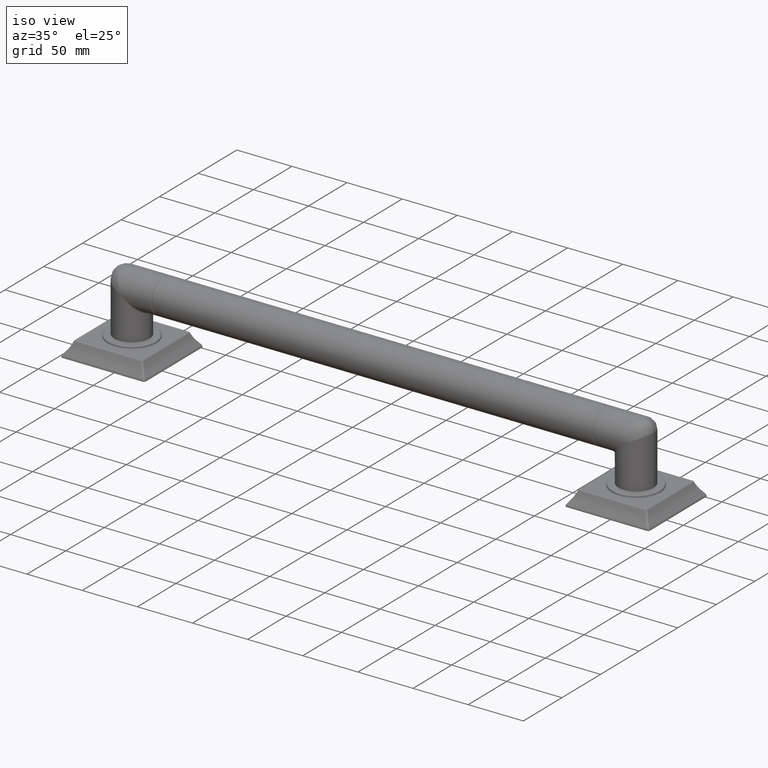
[diagram: clean part render]
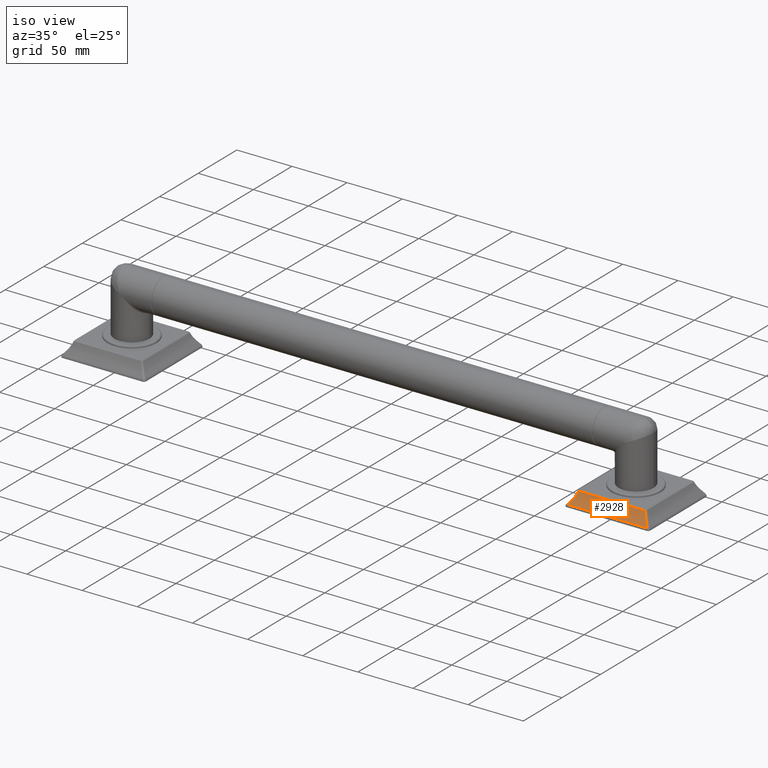
[diagram: same view with one face highlighted and labeled with its STEP entity id]
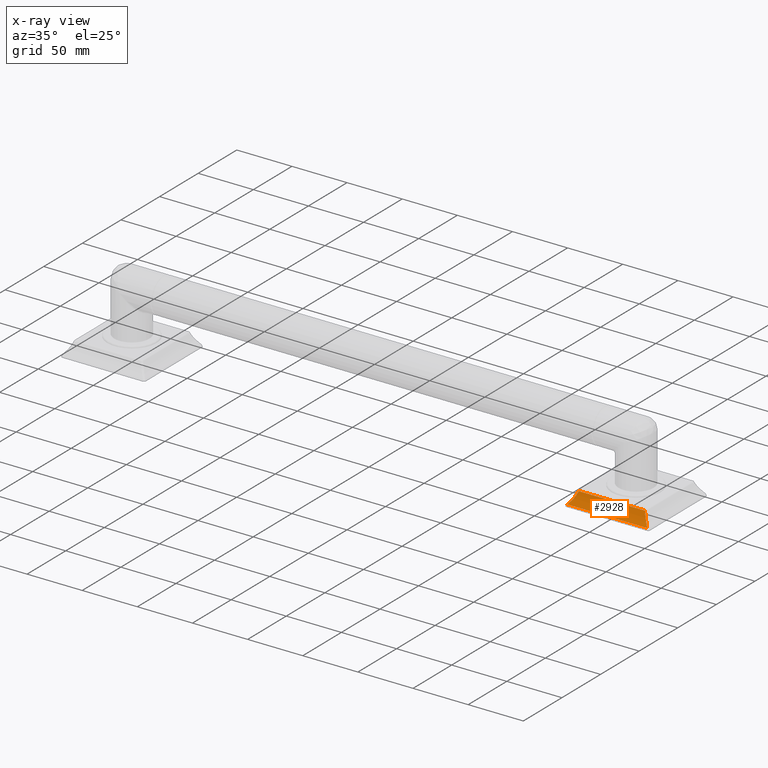
[diagram: x-ray of the same camera — body ghosted, the highlighted face saturated]
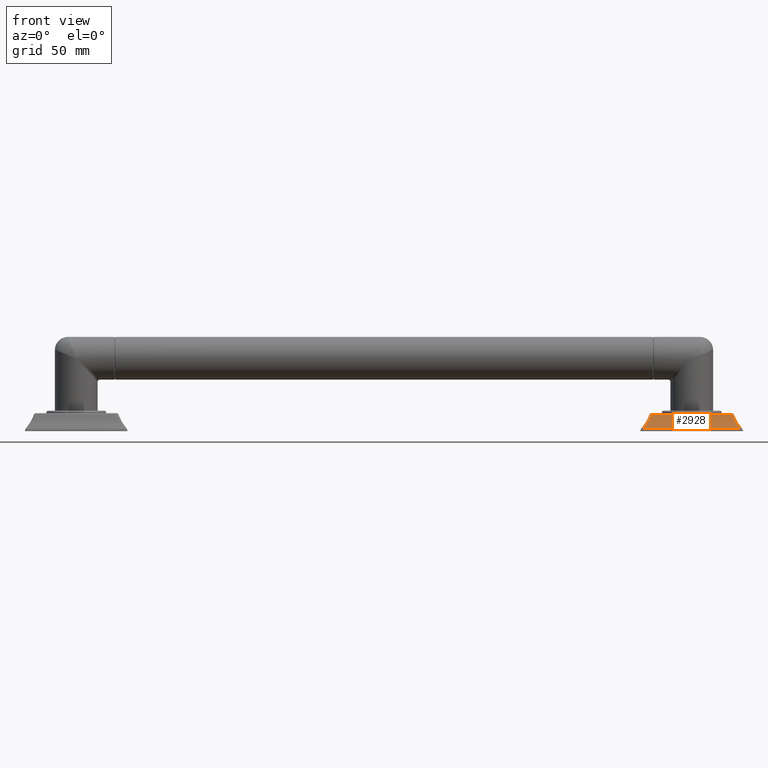
[diagram: same view with one face highlighted and labeled with its STEP entity id]
A machine part, iso view. The second image highlights one B-rep face of the part: STEP entity #2928.
The next image is the same camera in x-ray: the body ghosted, the highlighted face saturated — about 0% of this face is hidden behind the body in this view.
A second angle (front view) of the same face is appended — the face is thin or edge-on in the first view.
In plain terms, the highlighted cylindrical surface (partial cylindrical patch) has radius 34.29 mm, axis along (1, 0, 0).
Its self-contained STEP definition (entity closure, byte-faithful):
#886=DIRECTION('',(1.E0,-1.306975961452E-7,-2.315289596909E-7));
#887=VECTOR('',#886,2.358673166659E0);
#888=CARTESIAN_POINT('',(1.682066368191E1,-1.235673918475E0,4.856412035867E-1));
#889=LINE('',#888,#887);
#890=CARTESIAN_POINT('',(1.917933684857E1,-1.235674226748E0,4.856406574856E-1));
#891=CARTESIAN_POINT('',(1.918977609755E1,-1.245669439603E0,4.583591015403E-1));
#892=CARTESIAN_POINT('',(1.921282351725E1,-1.267736183467E0,4.035954756326E-1));
#893=CARTESIAN_POINT('',(1.925410010866E1,-1.307256593542E0,3.216667168757E-1));
#894=CARTESIAN_POINT('',(1.930263103807E1,-1.353722136464E0,2.400925775336E-1));
#895=CARTESIAN_POINT('',(1.935884142679E1,-1.407540822661E0,1.594220579925E-1));
#896=CARTESIAN_POINT('',(1.940183371029E1,-1.448703511971E0,1.065372737394E-1));
#897=CARTESIAN_POINT('',(1.942472055948E1,-1.470616460538E0,8.051392720584E-2));
#899=DIRECTION('',(1.E0,-2.820909210862E-13,-3.343498227308E-13));
#900=VECTOR('',#899,2.849441118961E0);
#901=CARTESIAN_POINT('',(1.657527944052E1,-1.470616460538E0,8.051392720679E-2));
#902=LINE('',#901,#900);
#903=CARTESIAN_POINT('',(1.657527944052E1,-1.470616460538E0,8.051392720679E-2));
#904=CARTESIAN_POINT('',(1.659816500653E1,-1.448704637603E0,1.065361182231E-1));
#905=CARTESIAN_POINT('',(1.664115424527E1,-1.407544693276E0,1.594171092723E-1));
#906=CARTESIAN_POINT('',(1.669735662738E1,-1.353734780999E0,2.400730287610E-1));
#907=CARTESIAN_POINT('',(1.674588286766E1,-1.307272100040E0,3.216366913291E-1));
#908=CARTESIAN_POINT('',(1.678717471558E1,-1.267738393221E0,4.035889332462E-1));
#909=CARTESIAN_POINT('',(1.681022304262E1,-1.245670108506E0,4.583578707930E-1));
#910=CARTESIAN_POINT('',(1.682066368191E1,-1.235673918475E0,4.856412035867E-1));
#1334=CARTESIAN_POINT('',(1.657527944052E1,-1.470616460538E0,
8.051392720679E-2));
#1335=CARTESIAN_POINT('',(1.942472055948E1,-1.470616460538E0,
8.051392720584E-2));
#1336=VERTEX_POINT('',#1334);
#1337=VERTEX_POINT('',#1335);
#1344=CARTESIAN_POINT('',(1.682066377684E1,-1.235674014869E0,
4.856415335582E-1));
#1345=VERTEX_POINT('',#1344);
#1346=CARTESIAN_POINT('',(1.917933684857E1,-1.235674226748E0,
4.856406574856E-1));
#1347=VERTEX_POINT('',#1346);
#2915=CARTESIAN_POINT('',(1.65E1,-2.503274234290E0,9.500643411043E-1));
#2916=DIRECTION('',(1.E0,0.E0,0.E0));
#2917=DIRECTION('',(0.E0,1.E0,0.E0));
#2918=AXIS2_PLACEMENT_3D('',#2915,#2916,#2917);
#2919=CYLINDRICAL_SURFACE('',#2918,1.35E0);
#2920=ORIENTED_EDGE('',*,*,#2752,.T.);
#2922=ORIENTED_EDGE('',*,*,#2921,.T.);
#2924=ORIENTED_EDGE('',*,*,#2923,.F.);
#2925=ORIENTED_EDGE('',*,*,#2907,.T.);
#2926=EDGE_LOOP('',(#2920,#2922,#2924,#2925));
#2927=FACE_OUTER_BOUND('',#2926,.F.);
#2928=ADVANCED_FACE('',(#2927),#2919,.F.);
#898=B_SPLINE_CURVE_WITH_KNOTS('',3,(#890,#891,#892,#893,#894,#895,#896,#897),
.UNSPECIFIED.,.F.,.F.,(4,1,1,1,1,4),(0.E0,2.E-1,4.E-1,6.E-1,8.E-1,1.E0),
.UNSPECIFIED.);
#911=B_SPLINE_CURVE_WITH_KNOTS('',3,(#903,#904,#905,#906,#907,#908,#909,#910),
.UNSPECIFIED.,.F.,.F.,(4,1,1,1,1,4),(0.E0,2.E-1,4.E-1,6.E-1,8.E-1,1.E0),
.UNSPECIFIED.);
#2752=EDGE_CURVE('',#1345,#1347,#889,.T.);
#2907=EDGE_CURVE('',#1336,#1345,#911,.T.);
#2921=EDGE_CURVE('',#1347,#1337,#898,.T.);
#2923=EDGE_CURVE('',#1336,#1337,#902,.T.);